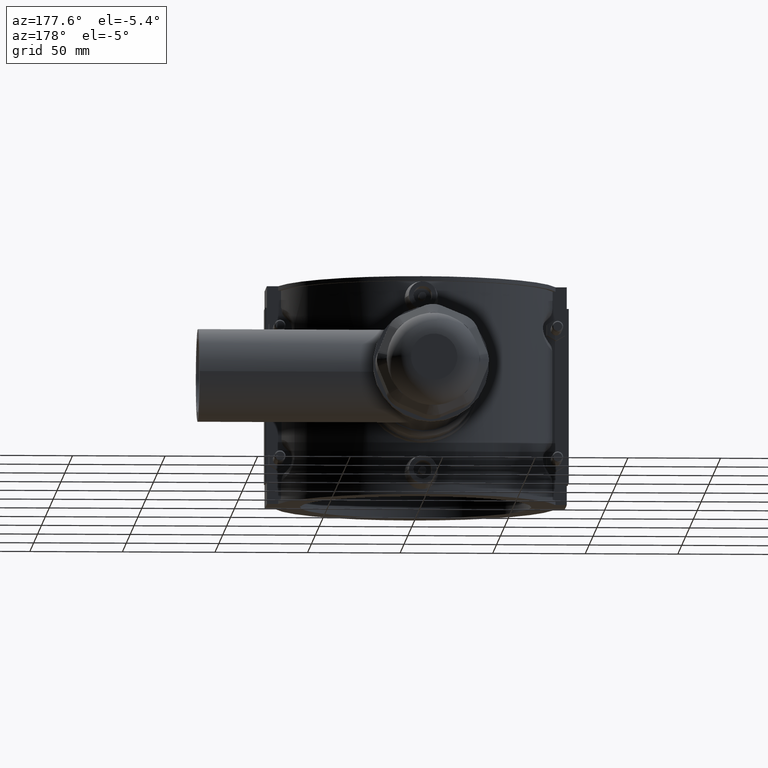
[diagram: clean part render]
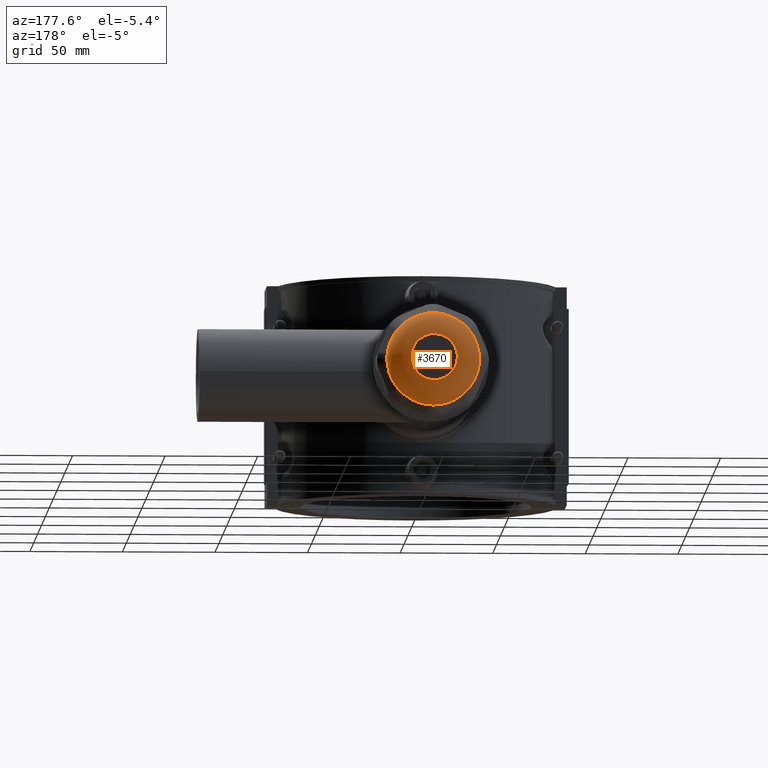
[diagram: same view with one face highlighted and labeled with its STEP entity id]
A machine part, auxiliary view. The second image highlights one B-rep face of the part: STEP entity #3670.
In plain terms, the highlighted toroidal blend (fillet) surface has major radius 12.5005 mm and minor (blend) radius 12.5 mm.
Its self-contained STEP definition (entity closure, byte-faithful):
#15=TOROIDAL_SURFACE('',#3917,12.5004840093706,12.5);
#666=FACE_BOUND('',#1170,.T.);
#719=B_SPLINE_CURVE_WITH_KNOTS('',3,(#5460,#5461,#5462,#5463),
 .UNSPECIFIED.,.F.,.F.,(4,4),(1.14861692684906,1.23817299455151),
 .UNSPECIFIED.);
#721=B_SPLINE_CURVE_WITH_KNOTS('',3,(#5496,#5497,#5498,#5499),
 .UNSPECIFIED.,.F.,.F.,(4,4),(0.,0.0830008459537939),.UNSPECIFIED.);
#723=B_SPLINE_CURVE_WITH_KNOTS('',3,(#5507,#5508,#5509,#5510,#5511,#5512,
#5513,#5514,#5515,#5516,#5517),.UNSPECIFIED.,.F.,.F.,(4,2,3,2,4),(-0.652133176559649,
-0.419561054113512,0.,0.419561054113512,0.652133176559647),
 .UNSPECIFIED.);
#724=B_SPLINE_CURVE_WITH_KNOTS('',3,(#5536,#5537,#5538,#5539),
 .UNSPECIFIED.,.F.,.F.,(4,4),(1.14861692684903,1.23817299455143),
 .UNSPECIFIED.);
#726=B_SPLINE_CURVE_WITH_KNOTS('',3,(#5572,#5573,#5574,#5575),
 .UNSPECIFIED.,.F.,.F.,(4,4),(0.,0.0830008459537938),.UNSPECIFIED.);
#728=B_SPLINE_CURVE_WITH_KNOTS('',3,(#5583,#5584,#5585,#5586,#5587,#5588,
#5589,#5590,#5591,#5592,#5593),.UNSPECIFIED.,.F.,.F.,(4,2,3,2,4),(-0.65213317655962,
-0.419561054113675,0.,0.419561054113675,0.65213317655962),.UNSPECIFIED.);
#729=B_SPLINE_CURVE_WITH_KNOTS('',3,(#5612,#5613,#5614,#5615),
 .UNSPECIFIED.,.F.,.F.,(4,4),(1.148616926849,1.2381729945514),
 .UNSPECIFIED.);
#731=B_SPLINE_CURVE_WITH_KNOTS('',3,(#5648,#5649,#5650,#5651),
 .UNSPECIFIED.,.F.,.F.,(4,4),(0.,0.0830008459537998),.UNSPECIFIED.);
#733=B_SPLINE_CURVE_WITH_KNOTS('',3,(#5659,#5660,#5661,#5662,#5663,#5664,
#5665,#5666,#5667,#5668,#5669),.UNSPECIFIED.,.F.,.F.,(4,2,3,2,4),(-0.652133176559647,
-0.419561054113521,0.,0.41956105411352,0.652133176559648),.UNSPECIFIED.);
#734=B_SPLINE_CURVE_WITH_KNOTS('',3,(#5688,#5689,#5690,#5691),
 .UNSPECIFIED.,.F.,.F.,(4,4),(1.14861692684911,1.2381729945516),
 .UNSPECIFIED.);
#736=B_SPLINE_CURVE_WITH_KNOTS('',3,(#5724,#5725,#5726,#5727),
 .UNSPECIFIED.,.F.,.F.,(4,4),(0.,0.0830008459538005),.UNSPECIFIED.);
#738=B_SPLINE_CURVE_WITH_KNOTS('',3,(#5735,#5736,#5737,#5738,#5739,#5740,
#5741,#5742,#5743,#5744,#5745),.UNSPECIFIED.,.F.,.F.,(4,2,3,2,4),(-0.652133176559675,
-0.419561054113343,0.,0.419561054113343,0.652133176559675),
 .UNSPECIFIED.);
#739=B_SPLINE_CURVE_WITH_KNOTS('',3,(#5764,#5765,#5766,#5767),
 .UNSPECIFIED.,.F.,.F.,(4,4),(1.14861692684915,1.23817299455163),
 .UNSPECIFIED.);
#741=B_SPLINE_CURVE_WITH_KNOTS('',3,(#5800,#5801,#5802,#5803),
 .UNSPECIFIED.,.F.,.F.,(4,4),(0.,0.0830008459537953),.UNSPECIFIED.);
#743=B_SPLINE_CURVE_WITH_KNOTS('',3,(#5811,#5812,#5813,#5814,#5815,#5816,
#5817,#5818,#5819,#5820,#5821),.UNSPECIFIED.,.F.,.F.,(4,2,3,2,4),(-0.652133176559647,
-0.419561054113521,0.,0.419561054113521,0.652133176559647),
 .UNSPECIFIED.);
#744=B_SPLINE_CURVE_WITH_KNOTS('',3,(#5840,#5841,#5842,#5843),
 .UNSPECIFIED.,.F.,.F.,(4,4),(1.14861692684916,1.23817299455165),
 .UNSPECIFIED.);
#746=B_SPLINE_CURVE_WITH_KNOTS('',3,(#5876,#5877,#5878,#5879),
 .UNSPECIFIED.,.F.,.F.,(4,4),(0.,0.0830008459537993),.UNSPECIFIED.);
#748=B_SPLINE_CURVE_WITH_KNOTS('',3,(#5887,#5888,#5889,#5890,#5891,#5892,
#5893,#5894,#5895,#5896,#5897),.UNSPECIFIED.,.F.,.F.,(4,2,3,2,4),(-0.652133176559648,
-0.41956105411352,0.,0.419561054113519,0.652133176559647),.UNSPECIFIED.);
#749=B_SPLINE_CURVE_WITH_KNOTS('',3,(#5916,#5917,#5918,#5919),
 .UNSPECIFIED.,.F.,.F.,(4,4),(1.14861692684916,1.23817299455163),
 .UNSPECIFIED.);
#751=B_SPLINE_CURVE_WITH_KNOTS('',3,(#5952,#5953,#5954,#5955),
 .UNSPECIFIED.,.F.,.F.,(4,4),(0.,0.0830008459538),.UNSPECIFIED.);
#753=B_SPLINE_CURVE_WITH_KNOTS('',3,(#5963,#5964,#5965,#5966,#5967,#5968,
#5969,#5970,#5971,#5972,#5973),.UNSPECIFIED.,.F.,.F.,(4,2,3,2,4),(-0.652133176559646,
-0.41956105411352,0.,0.419561054113519,0.652133176559647),.UNSPECIFIED.);
#754=B_SPLINE_CURVE_WITH_KNOTS('',3,(#5992,#5993,#5994,#5995),
 .UNSPECIFIED.,.F.,.F.,(4,4),(1.14861692684902,1.23817299455142),
 .UNSPECIFIED.);
#756=B_SPLINE_CURVE_WITH_KNOTS('',3,(#6019,#6020,#6021,#6022),
 .UNSPECIFIED.,.F.,.F.,(4,4),(0.,0.0830008459537955),.UNSPECIFIED.);
#758=B_SPLINE_CURVE_WITH_KNOTS('',3,(#6030,#6031,#6032,#6033,#6034,#6035,
#6036,#6037,#6038,#6039,#6040),.UNSPECIFIED.,.F.,.F.,(4,2,3,2,4),(-0.652133176559621,
-0.41956105411367,0.,0.41956105411367,0.652133176559621),.UNSPECIFIED.);
#934=FACE_OUTER_BOUND('',#1169,.T.);
#1169=EDGE_LOOP('',(#2602,#2603,#2604,#2605,#2606,#2607,#2608,#2609,#2610,
#2611,#2612,#2613,#2614,#2615,#2616,#2617,#2618,#2619,#2620,#2621,#2622,
#2623,#2624,#2625,#2626,#2627,#2628,#2629,#2630,#2631,#2632,#2633));
#1170=EDGE_LOOP('',(#2634));
#1409=CIRCLE('',#3886,25.);
#1410=CIRCLE('',#3888,25.);
#1411=CIRCLE('',#3890,25.);
#1412=CIRCLE('',#3892,25.);
#1413=CIRCLE('',#3894,25.);
#1414=CIRCLE('',#3896,25.);
#1415=CIRCLE('',#3898,25.);
#1416=CIRCLE('',#3900,25.);
#1423=CIRCLE('',#3918,12.5004840093706);
#1525=VERTEX_POINT('',#5436);
#1526=VERTEX_POINT('',#5438);
#1528=VERTEX_POINT('',#5459);
#1531=VERTEX_POINT('',#5472);
#1532=VERTEX_POINT('',#5474);
#1534=VERTEX_POINT('',#5495);
#1536=VERTEX_POINT('',#5535);
#1539=VERTEX_POINT('',#5548);
#1540=VERTEX_POINT('',#5550);
#1542=VERTEX_POINT('',#5571);
#1544=VERTEX_POINT('',#5611);
#1547=VERTEX_POINT('',#5624);
#1548=VERTEX_POINT('',#5626);
#1550=VERTEX_POINT('',#5647);
#1552=VERTEX_POINT('',#5687);
#1555=VERTEX_POINT('',#5700);
#1556=VERTEX_POINT('',#5702);
#1558=VERTEX_POINT('',#5723);
#1560=VERTEX_POINT('',#5763);
#1563=VERTEX_POINT('',#5776);
#1564=VERTEX_POINT('',#5778);
#1566=VERTEX_POINT('',#5799);
#1568=VERTEX_POINT('',#5839);
#1571=VERTEX_POINT('',#5852);
#1572=VERTEX_POINT('',#5854);
#1574=VERTEX_POINT('',#5875);
#1576=VERTEX_POINT('',#5915);
#1579=VERTEX_POINT('',#5928);
#1580=VERTEX_POINT('',#5930);
#1582=VERTEX_POINT('',#5951);
#1584=VERTEX_POINT('',#5991);
#1586=VERTEX_POINT('',#6018);
#1599=VERTEX_POINT('',#6099);
#1881=EDGE_CURVE('',#1526,#1528,#719,.F.);
#1888=EDGE_CURVE('',#1534,#1531,#721,.F.);
#1891=EDGE_CURVE('',#1528,#1534,#723,.F.);
#1893=EDGE_CURVE('',#1532,#1536,#724,.F.);
#1900=EDGE_CURVE('',#1542,#1539,#726,.F.);
#1903=EDGE_CURVE('',#1536,#1542,#728,.F.);
#1905=EDGE_CURVE('',#1540,#1544,#729,.F.);
#1912=EDGE_CURVE('',#1550,#1547,#731,.F.);
#1915=EDGE_CURVE('',#1544,#1550,#733,.F.);
#1917=EDGE_CURVE('',#1548,#1552,#734,.F.);
#1924=EDGE_CURVE('',#1558,#1555,#736,.F.);
#1927=EDGE_CURVE('',#1552,#1558,#738,.F.);
#1929=EDGE_CURVE('',#1556,#1560,#739,.F.);
#1936=EDGE_CURVE('',#1566,#1563,#741,.F.);
#1939=EDGE_CURVE('',#1560,#1566,#743,.F.);
#1941=EDGE_CURVE('',#1564,#1568,#744,.F.);
#1948=EDGE_CURVE('',#1574,#1571,#746,.F.);
#1951=EDGE_CURVE('',#1568,#1574,#748,.F.);
#1953=EDGE_CURVE('',#1572,#1576,#749,.F.);
#1960=EDGE_CURVE('',#1582,#1579,#751,.F.);
#1963=EDGE_CURVE('',#1576,#1582,#753,.F.);
#1965=EDGE_CURVE('',#1580,#1584,#754,.F.);
#1968=EDGE_CURVE('',#1586,#1525,#756,.F.);
#1971=EDGE_CURVE('',#1584,#1586,#758,.F.);
#1973=EDGE_CURVE('',#1548,#1547,#1409,.T.);
#1974=EDGE_CURVE('',#1540,#1539,#1410,.T.);
#1975=EDGE_CURVE('',#1532,#1531,#1411,.T.);
#1976=EDGE_CURVE('',#1526,#1525,#1412,.T.);
#1977=EDGE_CURVE('',#1580,#1579,#1413,.T.);
#1978=EDGE_CURVE('',#1572,#1571,#1414,.T.);
#1979=EDGE_CURVE('',#1564,#1563,#1415,.T.);
#1980=EDGE_CURVE('',#1556,#1555,#1416,.T.);
#2000=EDGE_CURVE('',#1599,#1599,#1423,.T.);
#2602=ORIENTED_EDGE('',*,*,#1975,.T.);
#2603=ORIENTED_EDGE('',*,*,#1888,.F.);
#2604=ORIENTED_EDGE('',*,*,#1891,.F.);
#2605=ORIENTED_EDGE('',*,*,#1881,.F.);
#2606=ORIENTED_EDGE('',*,*,#1976,.T.);
#2607=ORIENTED_EDGE('',*,*,#1968,.F.);
#2608=ORIENTED_EDGE('',*,*,#1971,.F.);
#2609=ORIENTED_EDGE('',*,*,#1965,.F.);
#2610=ORIENTED_EDGE('',*,*,#1977,.T.);
#2611=ORIENTED_EDGE('',*,*,#1960,.F.);
#2612=ORIENTED_EDGE('',*,*,#1963,.F.);
#2613=ORIENTED_EDGE('',*,*,#1953,.F.);
#2614=ORIENTED_EDGE('',*,*,#1978,.T.);
#2615=ORIENTED_EDGE('',*,*,#1948,.F.);
#2616=ORIENTED_EDGE('',*,*,#1951,.F.);
#2617=ORIENTED_EDGE('',*,*,#1941,.F.);
#2618=ORIENTED_EDGE('',*,*,#1979,.T.);
#2619=ORIENTED_EDGE('',*,*,#1936,.F.);
#2620=ORIENTED_EDGE('',*,*,#1939,.F.);
#2621=ORIENTED_EDGE('',*,*,#1929,.F.);
#2622=ORIENTED_EDGE('',*,*,#1980,.T.);
#2623=ORIENTED_EDGE('',*,*,#1924,.F.);
#2624=ORIENTED_EDGE('',*,*,#1927,.F.);
#2625=ORIENTED_EDGE('',*,*,#1917,.F.);
#2626=ORIENTED_EDGE('',*,*,#1973,.T.);
#2627=ORIENTED_EDGE('',*,*,#1912,.F.);
#2628=ORIENTED_EDGE('',*,*,#1915,.F.);
#2629=ORIENTED_EDGE('',*,*,#1905,.F.);
#2630=ORIENTED_EDGE('',*,*,#1974,.T.);
#2631=ORIENTED_EDGE('',*,*,#1900,.F.);
#2632=ORIENTED_EDGE('',*,*,#1903,.F.);
#2633=ORIENTED_EDGE('',*,*,#1893,.F.);
#2634=ORIENTED_EDGE('',*,*,#2000,.T.);
#3670=ADVANCED_FACE('',(#934,#666),#15,.T.);
#3886=AXIS2_PLACEMENT_3D('',#6043,#4304,#4305);
#3888=AXIS2_PLACEMENT_3D('',#6045,#4308,#4309);
#3890=AXIS2_PLACEMENT_3D('',#6047,#4312,#4313);
#3892=AXIS2_PLACEMENT_3D('',#6049,#4316,#4317);
#3894=AXIS2_PLACEMENT_3D('',#6051,#4320,#4321);
#3896=AXIS2_PLACEMENT_3D('',#6053,#4324,#4325);
#3898=AXIS2_PLACEMENT_3D('',#6055,#4328,#4329);
#3900=AXIS2_PLACEMENT_3D('',#6057,#4332,#4333);
#3917=AXIS2_PLACEMENT_3D('',#6098,#4379,#4380);
#3918=AXIS2_PLACEMENT_3D('',#6100,#4381,#4382);
#4304=DIRECTION('center_axis',(0.,1.,3.06161699786838E-16));
#4305=DIRECTION('ref_axis',(1.,0.,0.));
#4308=DIRECTION('center_axis',(0.,1.,3.06161699786838E-16));
#4309=DIRECTION('ref_axis',(1.,0.,0.));
#4312=DIRECTION('center_axis',(0.,1.,3.06161699786838E-16));
#4313=DIRECTION('ref_axis',(1.,0.,0.));
#4316=DIRECTION('center_axis',(0.,1.,3.06161699786838E-16));
#4317=DIRECTION('ref_axis',(1.,0.,0.));
#4320=DIRECTION('center_axis',(0.,1.,3.06161699786838E-16));
#4321=DIRECTION('ref_axis',(1.,0.,0.));
#4324=DIRECTION('center_axis',(0.,1.,3.06161699786838E-16));
#4325=DIRECTION('ref_axis',(1.,0.,0.));
#4328=DIRECTION('center_axis',(0.,1.,3.06161699786838E-16));
#4329=DIRECTION('ref_axis',(1.,0.,0.));
#4332=DIRECTION('center_axis',(0.,1.,3.06161699786838E-16));
#4333=DIRECTION('ref_axis',(1.,0.,0.));
#4379=DIRECTION('center_axis',(0.,1.,3.06161699786838E-16));
#4380=DIRECTION('ref_axis',(-6.12323399573676E-17,0.,1.));
#4381=DIRECTION('center_axis',(0.,-1.,-3.06161699786838E-16));
#4382=DIRECTION('ref_axis',(-6.12323399573676E-17,-3.55257612038994E-16,
1.));
#5436=CARTESIAN_POINT('',(-19.126208678676,227.11,-16.099321152761));
#5438=CARTESIAN_POINT('',(-16.0993211527611,227.11,-19.1262086786759));
#5459=CARTESIAN_POINT('',(-15.4734989796974,226.918269374105,-19.6362335978066));
#5460=CARTESIAN_POINT('Ctrl Pts',(-15.4734989797068,226.918269374109,-19.6362335977993));
#5461=CARTESIAN_POINT('Ctrl Pts',(-15.685311009736,226.99085837245,-19.4699284166553));
#5462=CARTESIAN_POINT('Ctrl Pts',(-15.8938977724541,227.055131490549,-19.2997531885738));
#5463=CARTESIAN_POINT('Ctrl Pts',(-16.099321152761,227.11,-19.126208678676));
#5472=CARTESIAN_POINT('',(-2.14033269546344,227.11,-24.9082110146981));
#5474=CARTESIAN_POINT('',(2.14033269546349,227.11,-24.9082110146981));
#5495=CARTESIAN_POINT('',(-2.94349787674503,226.918269374105,-24.8263299911993));
#5496=CARTESIAN_POINT('Ctrl Pts',(-2.14033269546345,227.11,-24.9082110146981));
#5497=CARTESIAN_POINT('Ctrl Pts',(-2.41046299489866,227.054689313826,-24.8854875886986));
#5498=CARTESIAN_POINT('Ctrl Pts',(-2.67829632943043,226.990269856968,-24.8582473077912));
#5499=CARTESIAN_POINT('Ctrl Pts',(-2.94349787674504,226.918269374105,-24.8263299911993));
#5507=CARTESIAN_POINT('Ctrl Pts',(-2.94349787674503,226.918269374105,-24.8263299911993));
#5508=CARTESIAN_POINT('Ctrl Pts',(-3.7302258800346,226.704677874764,-24.7316463552744));
#5509=CARTESIAN_POINT('Ctrl Pts',(-4.54150803466197,226.524961044859,-24.5901263788663));
#5510=CARTESIAN_POINT('Ctrl Pts',(-6.80916952595034,226.134604317504,-24.0733493113241));
#5511=CARTESIAN_POINT('Ctrl Pts',(-8.26044605021313,226.019283002227,-23.5970337844038));
#5512=CARTESIAN_POINT('Ctrl Pts',(-9.55252561866091,226.019283002227,-23.0618369034876));
#5513=CARTESIAN_POINT('Ctrl Pts',(-10.8446051871087,226.019283002227,-22.5266400225713));
#5514=CARTESIAN_POINT('Ctrl Pts',(-12.2076185978616,226.134604317504,-21.8372384899581));
#5515=CARTESIAN_POINT('Ctrl Pts',(-14.1765139846079,226.524961044859,-20.5991762408532));
#5516=CARTESIAN_POINT('Ctrl Pts',(-14.850246832592,226.704677874764,-20.1255828628521));
#5517=CARTESIAN_POINT('Ctrl Pts',(-15.4734989796974,226.918269374105,-19.6362335978066));
#5535=CARTESIAN_POINT('',(2.94349787674507,226.918269374105,-24.8263299911993));
#5536=CARTESIAN_POINT('Ctrl Pts',(2.94349787673328,226.918269374109,-24.8263299912007));
#5537=CARTESIAN_POINT('Ctrl Pts',(2.67612863262937,226.99085837245,-24.858508192638));
#5538=CARTESIAN_POINT('Ctrl Pts',(2.40830346047925,227.055131490549,-24.8856692492553));
#5539=CARTESIAN_POINT('Ctrl Pts',(2.14033269546349,227.11,-24.9082110146981));
#5548=CARTESIAN_POINT('',(16.099321152761,227.11,-19.126208678676));
#5550=CARTESIAN_POINT('',(19.126208678676,227.11,-16.099321152761));
#5571=CARTESIAN_POINT('',(15.4734989796974,226.918269374105,-19.6362335978066));
#5572=CARTESIAN_POINT('Ctrl Pts',(16.099321152761,227.11,-19.126208678676));
#5573=CARTESIAN_POINT('Ctrl Pts',(15.8922422976104,227.054689313826,-19.3011517565945));
#5574=CARTESIAN_POINT('Ctrl Pts',(15.6835937431841,226.990269856968,-19.4712767363187));
#5575=CARTESIAN_POINT('Ctrl Pts',(15.4734989796974,226.918269374105,-19.6362335978066));
#5583=CARTESIAN_POINT('Ctrl Pts',(15.4734989796974,226.918269374105,-19.6362335978066));
#5584=CARTESIAN_POINT('Ctrl Pts',(14.8502468325925,226.704677874764,-20.1255828628517));
#5585=CARTESIAN_POINT('Ctrl Pts',(14.176513984609,226.524961044859,-20.5991762408525));
#5586=CARTESIAN_POINT('Ctrl Pts',(12.2076185978629,226.134604317504,-21.8372384899574));
#5587=CARTESIAN_POINT('Ctrl Pts',(10.8446051871088,226.019283002228,-22.5266400225702));
#5588=CARTESIAN_POINT('Ctrl Pts',(9.55252561866056,226.019283002228,-23.0618369034867));
#5589=CARTESIAN_POINT('Ctrl Pts',(8.26044605021228,226.019283002228,-23.5970337844031));
#5590=CARTESIAN_POINT('Ctrl Pts',(6.80916952594897,226.134604317504,-24.0733493113246));
#5591=CARTESIAN_POINT('Ctrl Pts',(4.54150803466073,226.524961044859,-24.5901263788665));
#5592=CARTESIAN_POINT('Ctrl Pts',(3.73022588003403,226.704677874764,-24.7316463552744));
#5593=CARTESIAN_POINT('Ctrl Pts',(2.94349787674507,226.918269374105,-24.8263299911993));
#5611=CARTESIAN_POINT('',(19.6362335978067,226.918269374105,-15.4734989796974));
#5612=CARTESIAN_POINT('Ctrl Pts',(19.6362335977993,226.918269374109,-15.4734989797067));
#5613=CARTESIAN_POINT('Ctrl Pts',(19.4699284166554,226.99085837245,-15.6853110097359));
#5614=CARTESIAN_POINT('Ctrl Pts',(19.2997531885739,227.055131490549,-15.8938977724541));
#5615=CARTESIAN_POINT('Ctrl Pts',(19.126208678676,227.11,-16.099321152761));
#5624=CARTESIAN_POINT('',(24.9082110146982,227.11,-2.14033269546336));
#5626=CARTESIAN_POINT('',(24.9082110146982,227.11,2.14033269546349));
#5647=CARTESIAN_POINT('',(24.8263299911994,226.918269374105,-2.94349787674499));
#5648=CARTESIAN_POINT('Ctrl Pts',(24.9082110146982,227.11,-2.14033269546336));
#5649=CARTESIAN_POINT('Ctrl Pts',(24.8854875886987,227.054689313826,-2.41046299489859));
#5650=CARTESIAN_POINT('Ctrl Pts',(24.8582473077913,226.990269856968,-2.67829632943038));
#5651=CARTESIAN_POINT('Ctrl Pts',(24.8263299911994,226.918269374105,-2.943497876745));
#5659=CARTESIAN_POINT('Ctrl Pts',(24.8263299911994,226.918269374105,-2.94349787674499));
#5660=CARTESIAN_POINT('Ctrl Pts',(24.7316463552744,226.704677874764,-3.73022588003452));
#5661=CARTESIAN_POINT('Ctrl Pts',(24.5901263788663,226.524961044859,-4.54150803466186));
#5662=CARTESIAN_POINT('Ctrl Pts',(24.0733493113242,226.134604317504,-6.80916952595021));
#5663=CARTESIAN_POINT('Ctrl Pts',(23.5970337844039,226.019283002227,-8.26044605021304));
#5664=CARTESIAN_POINT('Ctrl Pts',(23.0618369034876,226.019283002227,-9.55252561866085));
#5665=CARTESIAN_POINT('Ctrl Pts',(22.5266400225714,226.019283002227,-10.8446051871087));
#5666=CARTESIAN_POINT('Ctrl Pts',(21.8372384899581,226.134604317504,-12.2076185978615));
#5667=CARTESIAN_POINT('Ctrl Pts',(20.5991762408532,226.524961044859,-14.1765139846079));
#5668=CARTESIAN_POINT('Ctrl Pts',(20.1255828628521,226.704677874764,-14.850246832592));
#5669=CARTESIAN_POINT('Ctrl Pts',(19.6362335978067,226.918269374105,-15.4734989796974));
#5687=CARTESIAN_POINT('',(24.8263299911994,226.918269374105,2.94349787674512));
#5688=CARTESIAN_POINT('Ctrl Pts',(24.8263299912008,226.918269374109,2.94349787673331));
#5689=CARTESIAN_POINT('Ctrl Pts',(24.858508192638,226.99085837245,2.67612863262935));
#5690=CARTESIAN_POINT('Ctrl Pts',(24.8856692492554,227.055131490549,2.40830346047924));
#5691=CARTESIAN_POINT('Ctrl Pts',(24.9082110146982,227.11,2.14033269546349));
#5700=CARTESIAN_POINT('',(19.126208678676,227.11,16.0993211527611));
#5702=CARTESIAN_POINT('',(16.0993211527611,227.11,19.1262086786761));
#5723=CARTESIAN_POINT('',(19.6362335978067,226.918269374105,15.4734989796975));
#5724=CARTESIAN_POINT('Ctrl Pts',(19.126208678676,227.11,16.0993211527611));
#5725=CARTESIAN_POINT('Ctrl Pts',(19.3011517565946,227.054689313826,15.8922422976105));
#5726=CARTESIAN_POINT('Ctrl Pts',(19.4712767363187,226.990269856968,15.6835937431842));
#5727=CARTESIAN_POINT('Ctrl Pts',(19.6362335978067,226.918269374105,15.4734989796975));
#5735=CARTESIAN_POINT('Ctrl Pts',(19.6362335978067,226.918269374105,15.4734989796975));
#5736=CARTESIAN_POINT('Ctrl Pts',(20.1255828628525,226.704677874763,14.8502468325916));
#5737=CARTESIAN_POINT('Ctrl Pts',(20.599176240854,226.524961044859,14.1765139846068));
#5738=CARTESIAN_POINT('Ctrl Pts',(21.8372384899588,226.134604317504,12.2076185978603));
#5739=CARTESIAN_POINT('Ctrl Pts',(22.5266400225726,226.019283002226,10.8446051871087));
#5740=CARTESIAN_POINT('Ctrl Pts',(23.0618369034886,226.019283002226,9.55252561866141));
#5741=CARTESIAN_POINT('Ctrl Pts',(23.5970337844047,226.019283002226,8.26044605021415));
#5742=CARTESIAN_POINT('Ctrl Pts',(24.0733493113237,226.134604317504,6.80916952595187));
#5743=CARTESIAN_POINT('Ctrl Pts',(24.5901263788661,226.524961044859,4.54150803466339));
#5744=CARTESIAN_POINT('Ctrl Pts',(24.7316463552743,226.704677874763,3.73022588003531));
#5745=CARTESIAN_POINT('Ctrl Pts',(24.8263299911994,226.918269374105,2.94349787674512));
#5763=CARTESIAN_POINT('',(15.4734989796974,226.918269374105,19.6362335978067));
#5764=CARTESIAN_POINT('Ctrl Pts',(15.4734989797068,226.918269374109,19.6362335977994));
#5765=CARTESIAN_POINT('Ctrl Pts',(15.685311009736,226.99085837245,19.4699284166554));
#5766=CARTESIAN_POINT('Ctrl Pts',(15.8938977724541,227.055131490549,19.2997531885739));
#5767=CARTESIAN_POINT('Ctrl Pts',(16.099321152761,227.11,19.126208678676));
#5776=CARTESIAN_POINT('',(2.14033269546345,227.11,24.9082110146982));
#5778=CARTESIAN_POINT('',(-2.14033269546348,227.11,24.9082110146982));
#5799=CARTESIAN_POINT('',(2.94349787674504,226.918269374105,24.8263299911994));
#5800=CARTESIAN_POINT('Ctrl Pts',(2.14033269546345,227.11,24.9082110146982));
#5801=CARTESIAN_POINT('Ctrl Pts',(2.41046299489867,227.054689313826,24.8854875886987));
#5802=CARTESIAN_POINT('Ctrl Pts',(2.67829632943044,226.990269856968,24.8582473077913));
#5803=CARTESIAN_POINT('Ctrl Pts',(2.94349787674505,226.918269374105,24.8263299911994));
#5811=CARTESIAN_POINT('Ctrl Pts',(2.94349787674504,226.918269374105,24.8263299911994));
#5812=CARTESIAN_POINT('Ctrl Pts',(3.73022588003458,226.704677874764,24.7316463552745));
#5813=CARTESIAN_POINT('Ctrl Pts',(4.54150803466191,226.524961044859,24.5901263788664));
#5814=CARTESIAN_POINT('Ctrl Pts',(6.80916952595027,226.134604317504,24.0733493113243));
#5815=CARTESIAN_POINT('Ctrl Pts',(8.2604460502131,226.019283002227,23.5970337844039));
#5816=CARTESIAN_POINT('Ctrl Pts',(9.55252561866091,226.019283002227,23.0618369034877));
#5817=CARTESIAN_POINT('Ctrl Pts',(10.8446051871087,226.019283002227,22.5266400225714));
#5818=CARTESIAN_POINT('Ctrl Pts',(12.2076185978616,226.134604317504,21.8372384899581));
#5819=CARTESIAN_POINT('Ctrl Pts',(14.1765139846079,226.524961044859,20.5991762408533));
#5820=CARTESIAN_POINT('Ctrl Pts',(14.8502468325921,226.704677874764,20.1255828628522));
#5821=CARTESIAN_POINT('Ctrl Pts',(15.4734989796974,226.918269374105,19.6362335978067));
#5839=CARTESIAN_POINT('',(-2.94349787674506,226.918269374105,24.8263299911994));
#5840=CARTESIAN_POINT('Ctrl Pts',(-2.94349787673326,226.918269374109,24.8263299912009));
#5841=CARTESIAN_POINT('Ctrl Pts',(-2.67612863262932,226.99085837245,24.8585081926381));
#5842=CARTESIAN_POINT('Ctrl Pts',(-2.4083034604792,227.055131490549,24.8856692492554));
#5843=CARTESIAN_POINT('Ctrl Pts',(-2.14033269546347,227.11,24.9082110146982));
#5852=CARTESIAN_POINT('',(-16.099321152761,227.11,19.1262086786761));
#5854=CARTESIAN_POINT('',(-19.126208678676,227.11,16.0993211527611));
#5875=CARTESIAN_POINT('',(-15.4734989796974,226.918269374105,19.6362335978067));
#5876=CARTESIAN_POINT('Ctrl Pts',(-16.099321152761,227.11,19.1262086786761));
#5877=CARTESIAN_POINT('Ctrl Pts',(-15.8922422976104,227.054689313826,19.3011517565946));
#5878=CARTESIAN_POINT('Ctrl Pts',(-15.6835937431841,226.990269856968,19.4712767363188));
#5879=CARTESIAN_POINT('Ctrl Pts',(-15.4734989796974,226.918269374105,19.6362335978067));
#5887=CARTESIAN_POINT('Ctrl Pts',(-15.4734989796974,226.918269374105,19.6362335978067));
#5888=CARTESIAN_POINT('Ctrl Pts',(-14.8502468325921,226.704677874764,20.1255828628522));
#5889=CARTESIAN_POINT('Ctrl Pts',(-14.176513984608,226.524961044859,20.5991762408533));
#5890=CARTESIAN_POINT('Ctrl Pts',(-12.2076185978616,226.134604317504,21.8372384899581));
#5891=CARTESIAN_POINT('Ctrl Pts',(-10.8446051871087,226.019283002227,22.5266400225714));
#5892=CARTESIAN_POINT('Ctrl Pts',(-9.55252561866093,226.019283002227,23.0618369034877));
#5893=CARTESIAN_POINT('Ctrl Pts',(-8.26044605021312,226.019283002227,23.5970337844039));
#5894=CARTESIAN_POINT('Ctrl Pts',(-6.8091695259503,226.134604317504,24.0733493113243));
#5895=CARTESIAN_POINT('Ctrl Pts',(-4.54150803466194,226.524961044859,24.5901263788664));
#5896=CARTESIAN_POINT('Ctrl Pts',(-3.7302258800346,226.704677874764,24.7316463552745));
#5897=CARTESIAN_POINT('Ctrl Pts',(-2.94349787674507,226.918269374105,24.8263299911994));
#5915=CARTESIAN_POINT('',(-19.6362335978067,226.918269374105,15.4734989796975));
#5916=CARTESIAN_POINT('Ctrl Pts',(-19.6362335977993,226.918269374109,15.4734989797068));
#5917=CARTESIAN_POINT('Ctrl Pts',(-19.4699284166554,226.99085837245,15.6853110097361));
#5918=CARTESIAN_POINT('Ctrl Pts',(-19.2997531885739,227.055131490549,15.8938977724542));
#5919=CARTESIAN_POINT('Ctrl Pts',(-19.126208678676,227.11,16.0993211527611));
#5928=CARTESIAN_POINT('',(-24.9082110146982,227.11,2.14033269546347));
#5930=CARTESIAN_POINT('',(-24.9082110146982,227.11,-2.14033269546337));
#5951=CARTESIAN_POINT('',(-24.8263299911994,226.918269374105,2.9434978767451));
#5952=CARTESIAN_POINT('Ctrl Pts',(-24.9082110146982,227.11,2.14033269546348));
#5953=CARTESIAN_POINT('Ctrl Pts',(-24.8854875886987,227.054689313826,2.41046299489871));
#5954=CARTESIAN_POINT('Ctrl Pts',(-24.8582473077912,226.990269856968,2.67829632943051));
#5955=CARTESIAN_POINT('Ctrl Pts',(-24.8263299911994,226.918269374105,2.94349787674511));
#5963=CARTESIAN_POINT('Ctrl Pts',(-24.8263299911994,226.918269374105,2.9434978767451));
#5964=CARTESIAN_POINT('Ctrl Pts',(-24.7316463552744,226.704677874764,3.73022588003463));
#5965=CARTESIAN_POINT('Ctrl Pts',(-24.5901263788663,226.524961044859,4.54150803466197));
#5966=CARTESIAN_POINT('Ctrl Pts',(-24.0733493113242,226.134604317504,6.80916952595033));
#5967=CARTESIAN_POINT('Ctrl Pts',(-23.5970337844039,226.019283002227,8.26044605021315));
#5968=CARTESIAN_POINT('Ctrl Pts',(-23.0618369034876,226.019283002227,9.55252561866096));
#5969=CARTESIAN_POINT('Ctrl Pts',(-22.5266400225714,226.019283002227,10.8446051871088));
#5970=CARTESIAN_POINT('Ctrl Pts',(-21.8372384899581,226.134604317504,12.2076185978617));
#5971=CARTESIAN_POINT('Ctrl Pts',(-20.5991762408532,226.524961044859,14.176513984608));
#5972=CARTESIAN_POINT('Ctrl Pts',(-20.1255828628521,226.704677874764,14.8502468325921));
#5973=CARTESIAN_POINT('Ctrl Pts',(-19.6362335978067,226.918269374105,15.4734989796975));
#5991=CARTESIAN_POINT('',(-24.8263299911994,226.918269374105,-2.943497876745));
#5992=CARTESIAN_POINT('Ctrl Pts',(-24.8263299912008,226.918269374109,-2.9434978767332));
#5993=CARTESIAN_POINT('Ctrl Pts',(-24.858508192638,226.99085837245,-2.67612863262929));
#5994=CARTESIAN_POINT('Ctrl Pts',(-24.8856692492553,227.055131490549,-2.40830346047915));
#5995=CARTESIAN_POINT('Ctrl Pts',(-24.9082110146982,227.11,-2.14033269546338));
#6018=CARTESIAN_POINT('',(-19.6362335978067,226.918269374105,-15.4734989796974));
#6019=CARTESIAN_POINT('Ctrl Pts',(-19.126208678676,227.11,-16.099321152761));
#6020=CARTESIAN_POINT('Ctrl Pts',(-19.3011517565946,227.054689313826,-15.8922422976104));
#6021=CARTESIAN_POINT('Ctrl Pts',(-19.4712767363187,226.990269856968,-15.6835937431841));
#6022=CARTESIAN_POINT('Ctrl Pts',(-19.6362335978067,226.918269374105,-15.4734989796974));
#6030=CARTESIAN_POINT('Ctrl Pts',(-19.6362335978067,226.918269374105,-15.4734989796974));
#6031=CARTESIAN_POINT('Ctrl Pts',(-20.1255828628518,226.704677874764,-14.8502468325925));
#6032=CARTESIAN_POINT('Ctrl Pts',(-20.5991762408525,226.524961044859,-14.1765139846089));
#6033=CARTESIAN_POINT('Ctrl Pts',(-21.8372384899575,226.134604317504,-12.2076185978628));
#6034=CARTESIAN_POINT('Ctrl Pts',(-22.5266400225703,226.019283002228,-10.8446051871088));
#6035=CARTESIAN_POINT('Ctrl Pts',(-23.0618369034867,226.019283002228,-9.55252561866049));
#6036=CARTESIAN_POINT('Ctrl Pts',(-23.5970337844032,226.019283002228,-8.26044605021222));
#6037=CARTESIAN_POINT('Ctrl Pts',(-24.0733493113246,226.134604317504,-6.80916952594895));
#6038=CARTESIAN_POINT('Ctrl Pts',(-24.5901263788665,226.524961044859,-4.5415080346607));
#6039=CARTESIAN_POINT('Ctrl Pts',(-24.7316463552745,226.704677874764,-3.73022588003399));
#6040=CARTESIAN_POINT('Ctrl Pts',(-24.8263299911994,226.918269374105,-2.943497876745));
#6043=CARTESIAN_POINT('Origin',(0.,227.11,5.03972774019115E-14));
#6045=CARTESIAN_POINT('Origin',(0.,227.11,5.03972774019115E-14));
#6047=CARTESIAN_POINT('Origin',(0.,227.11,5.03972774019115E-14));
#6049=CARTESIAN_POINT('Origin',(0.,227.11,5.03972774019115E-14));
#6051=CARTESIAN_POINT('Origin',(0.,227.11,5.03972774019115E-14));
#6053=CARTESIAN_POINT('Origin',(0.,227.11,5.03972774019115E-14));
#6055=CARTESIAN_POINT('Origin',(0.,227.11,5.03972774019115E-14));
#6057=CARTESIAN_POINT('Origin',(0.,227.11,5.03972774019115E-14));
#6098=CARTESIAN_POINT('Origin',(0.,227.,5.03635996149349E-14));
#6099=CARTESIAN_POINT('',(2.29630165948026E-15,239.5,-12.5004840093706));
#6100=CARTESIAN_POINT('Origin',(0.,239.5,5.41906208622704E-14));